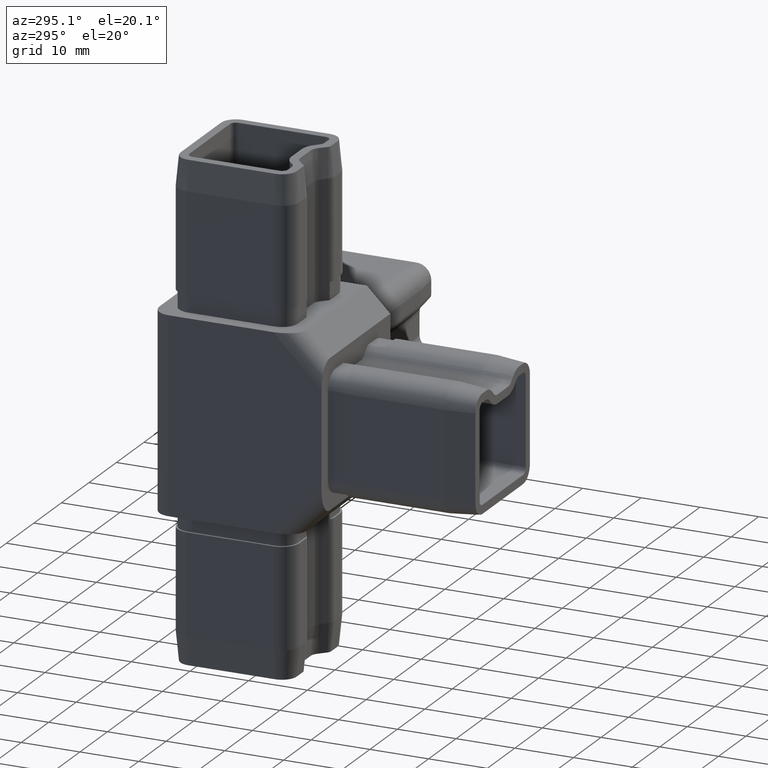
[diagram: clean part render]
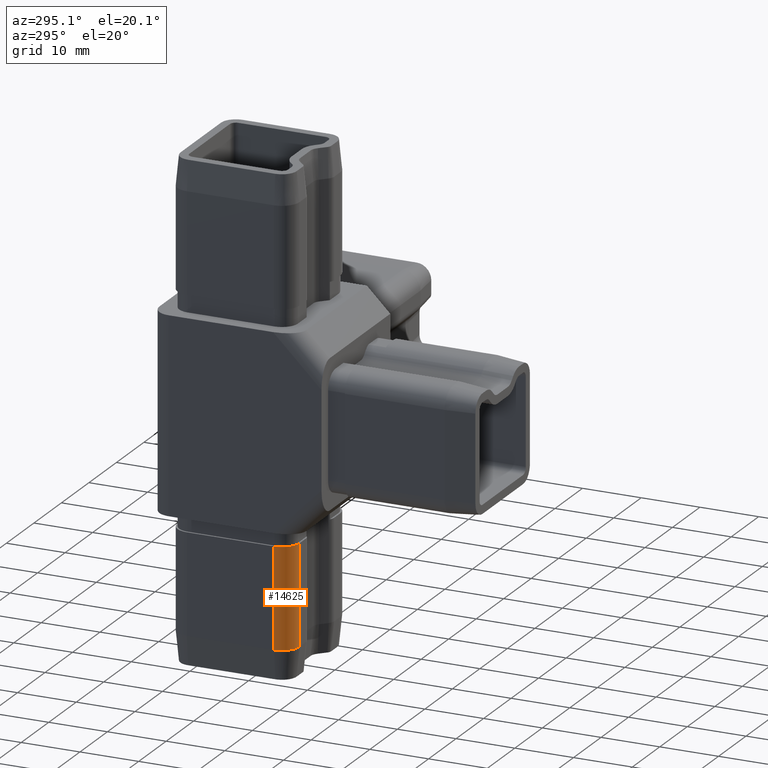
[diagram: same view with one face highlighted and labeled with its STEP entity id]
A machine part, auxiliary view. The second image highlights one B-rep face of the part: STEP entity #14625.
In plain terms, the highlighted cylindrical surface (edge-blend (fillet) strip) has radius 3 mm, axis along (-0, -0, 1).
Its self-contained STEP definition (entity closure, byte-faithful):
#324 = CIRCLE ( 'NONE', #11920, 3.000000000000002700 ) ;
#474 = ORIENTED_EDGE ( 'NONE', *, *, #15362, .F. ) ;
#653 = DIRECTION ( 'NONE',  ( 0.0000000000000000000, 0.0000000000000000000, -1.000000000000000000 ) ) ;
#747 = AXIS2_PLACEMENT_3D ( 'NONE', #7469, #19818, #16842 ) ;
#1101 = CARTESIAN_POINT ( 'NONE',  ( -9.400000000000005700, -8.400000000000000400, -19.50000000000000000 ) ) ;
#2169 = ORIENTED_EDGE ( 'NONE', *, *, #8418, .T. ) ;
#2226 = ORIENTED_EDGE ( 'NONE', *, *, #4021, .T. ) ;
#2978 = CYLINDRICAL_SURFACE ( 'NONE', #747, 2.999999999999999100 ) ;
#3621 = CARTESIAN_POINT ( 'NONE',  ( -9.400000000000005700, -8.400000000000000400, -36.50000000000001400 ) ) ;
#3701 = ORIENTED_EDGE ( 'NONE', *, *, #10391, .F. ) ;
#3796 = VERTEX_POINT ( 'NONE', #3997 ) ;
#3926 = CARTESIAN_POINT ( 'NONE',  ( -9.400000000000005700, -5.399999999999998600, -36.50000000000001400 ) ) ;
#3997 = CARTESIAN_POINT ( 'NONE',  ( -12.40000000000000600, -5.399999999999998600, -36.50000000000001400 ) ) ;
#4021 = EDGE_CURVE ( 'NONE', #18132, #11600, #9541, .T. ) ;
#4924 = CIRCLE ( 'NONE', #15639, 3.000000000000000900 ) ;
#5573 = CARTESIAN_POINT ( 'NONE',  ( -9.400000000000005700, -8.400000000000000400, -41.50000000000000000 ) ) ;
#5592 = DIRECTION ( 'NONE',  ( -1.000000000000000000, 0.0000000000000000000, 0.0000000000000000000 ) ) ;
#5915 = DIRECTION ( 'NONE',  ( -0.0000000000000000000, -0.0000000000000000000, 1.000000000000000000 ) ) ;
#7218 = DIRECTION ( 'NONE',  ( 0.0000000000000000000, 0.0000000000000000000, -1.000000000000000000 ) ) ;
#7469 = CARTESIAN_POINT ( 'NONE',  ( -9.400000000000005700, -5.399999999999998600, -41.50000000000000000 ) ) ;
#8322 = VECTOR ( 'NONE', #19499, 1000.000000000000000 ) ;
#8418 = EDGE_CURVE ( 'NONE', #11600, #12400, #4924, .T. ) ;
#8597 = FACE_OUTER_BOUND ( 'NONE', #9271, .T. ) ;
#8969 = CARTESIAN_POINT ( 'NONE',  ( -12.40000000000000400, -5.399999999999998600, -41.50000000000000000 ) ) ;
#9271 = EDGE_LOOP ( 'NONE', ( #3701, #474, #2226, #2169 ) ) ;
#9541 = LINE ( 'NONE', #5573, #8322 ) ;
#10391 = EDGE_CURVE ( 'NONE', #3796, #12400, #12842, .T. ) ;
#11600 = VERTEX_POINT ( 'NONE', #1101 ) ;
#11920 = AXIS2_PLACEMENT_3D ( 'NONE', #3926, #7218, #5592 ) ;
#12400 = VERTEX_POINT ( 'NONE', #14632 ) ;
#12842 = LINE ( 'NONE', #8969, #16431 ) ;
#14625 = ADVANCED_FACE ( 'NONE', ( #8597 ), #2978, .T. ) ;
#14627 = DIRECTION ( 'NONE',  ( -1.000000000000000000, 0.0000000000000000000, 0.0000000000000000000 ) ) ;
#14632 = CARTESIAN_POINT ( 'NONE',  ( -12.40000000000000400, -5.399999999999998600, -19.50000000000000000 ) ) ;
#15362 = EDGE_CURVE ( 'NONE', #18132, #3796, #324, .T. ) ;
#15639 = AXIS2_PLACEMENT_3D ( 'NONE', #15717, #653, #14627 ) ;
#15717 = CARTESIAN_POINT ( 'NONE',  ( -9.400000000000005700, -5.399999999999998600, -19.50000000000000000 ) ) ;
#16431 = VECTOR ( 'NONE', #5915, 1000.000000000000000 ) ;
#16842 = DIRECTION ( 'NONE',  ( 1.000000000000000000, 0.0000000000000000000, 0.0000000000000000000 ) ) ;
#18132 = VERTEX_POINT ( 'NONE', #3621 ) ;
#19499 = DIRECTION ( 'NONE',  ( -0.0000000000000000000, -0.0000000000000000000, 1.000000000000000000 ) ) ;
#19818 = DIRECTION ( 'NONE',  ( -0.0000000000000000000, -0.0000000000000000000, 1.000000000000000000 ) ) ;